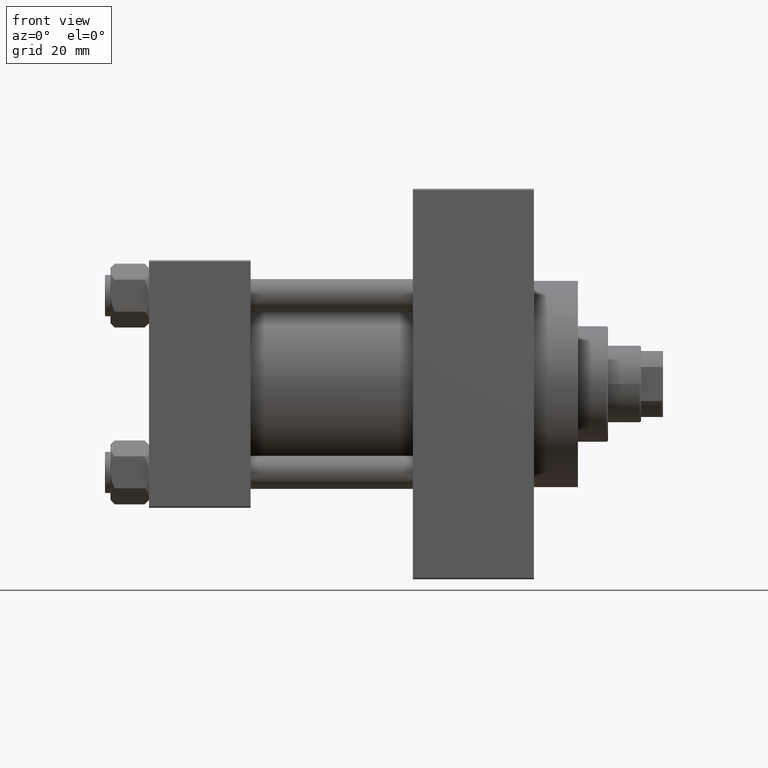
[diagram: clean part render]
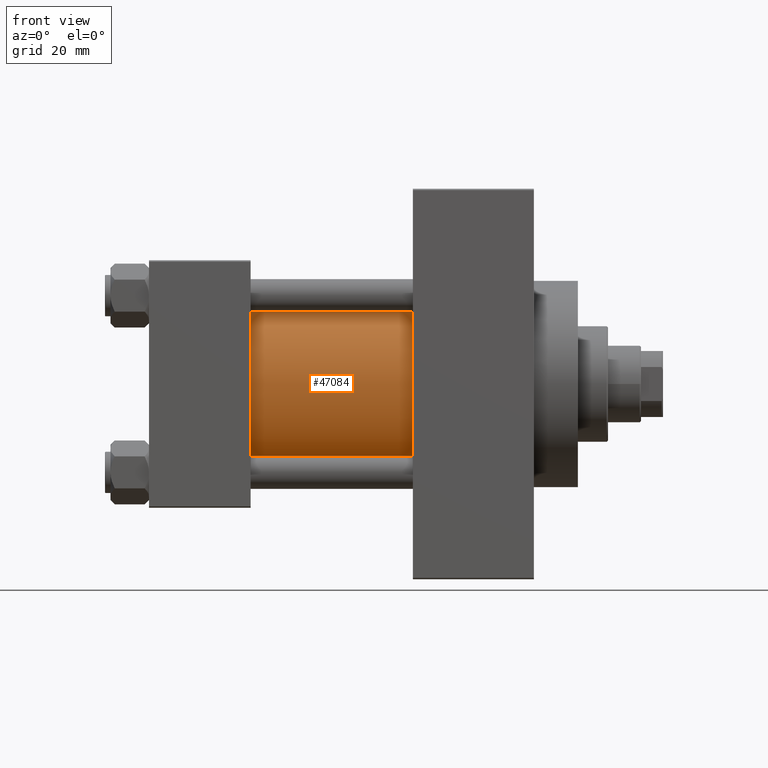
[diagram: same view with one face highlighted and labeled with its STEP entity id]
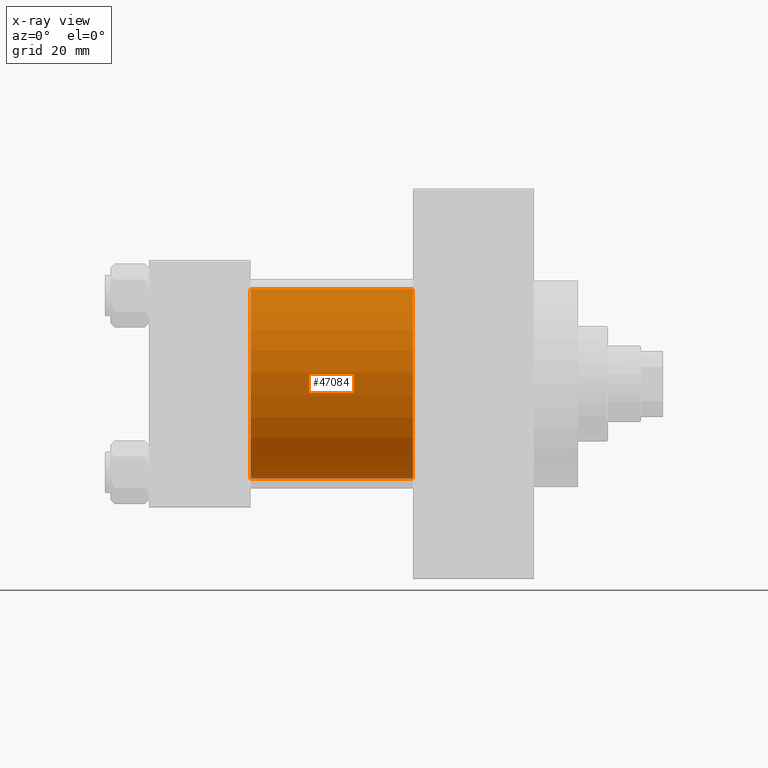
[diagram: x-ray of the same camera — body ghosted, the highlighted face saturated]
A machine part, front view. The second image highlights one B-rep face of the part: STEP entity #47084.
The next image is the same camera in x-ray: the body ghosted, the highlighted face saturated — about 3% of this face is hidden behind the body in this view.
In plain terms, the highlighted cylindrical surface (partial cylindrical patch) has radius 34.5 mm, axis along (-1, -0, -0).
Its self-contained STEP definition (entity closure, byte-faithful):
#3688 = LINE ( 'NONE', #22738, #17245 ) ;
#4126 = VERTEX_POINT ( 'NONE', #45085 ) ;
#4294 = ORIENTED_EDGE ( 'NONE', *, *, #12465, .F. ) ;
#5467 = FACE_OUTER_BOUND ( 'NONE', #12286, .T. ) ;
#7425 = CARTESIAN_POINT ( 'NONE',  ( 96.00000000000000000, -2.602085213965210642E-15, 34.50000000000000000 ) ) ;
#9060 = CARTESIAN_POINT ( 'NONE',  ( 96.00000000000000000, -2.602085213965210642E-15, 34.50000000000000000 ) ) ;
#10379 = VERTEX_POINT ( 'NONE', #37547 ) ;
#11471 = CIRCLE ( 'NONE', #39111, 34.50000000000000000 ) ;
#12286 = EDGE_LOOP ( 'NONE', ( #44621, #4294, #26840, #18832 ) ) ;
#12465 = EDGE_CURVE ( 'NONE', #42474, #17111, #14359, .T. ) ;
#12646 = CARTESIAN_POINT ( 'NONE',  ( 96.00000000000000000, -2.602085213965210642E-15, 0.000000000000000000 ) ) ;
#13139 = VECTOR ( 'NONE', #29460, 1000.000000000000000 ) ;
#14359 = CIRCLE ( 'NONE', #39626, 34.50000000000000000 ) ;
#14490 = EDGE_CURVE ( 'NONE', #4126, #10379, #11471, .T. ) ;
#15049 = DIRECTION ( 'NONE',  ( 1.000000000000000000, 0.000000000000000000, 0.000000000000000000 ) ) ;
#16356 = DIRECTION ( 'NONE',  ( 0.000000000000000000, 0.000000000000000000, 1.000000000000000000 ) ) ;
#17111 = VERTEX_POINT ( 'NONE', #44610 ) ;
#17245 = VECTOR ( 'NONE', #18794, 1000.000000000000000 ) ;
#17890 = AXIS2_PLACEMENT_3D ( 'NONE', #12646, #41450, #16356 ) ;
#18794 = DIRECTION ( 'NONE',  ( -1.000000000000000000, -0.000000000000000000, -0.000000000000000000 ) ) ;
#18832 = ORIENTED_EDGE ( 'NONE', *, *, #14490, .T. ) ;
#22738 = CARTESIAN_POINT ( 'NONE',  ( 96.00000000000000000, 1.622946243093158675E-15, -34.50000000000000000 ) ) ;
#22870 = CYLINDRICAL_SURFACE ( 'NONE', #17890, 34.50000000000000000 ) ;
#24868 = EDGE_CURVE ( 'NONE', #17111, #10379, #3688, .T. ) ;
#26840 = ORIENTED_EDGE ( 'NONE', *, *, #47306, .T. ) ;
#28078 = DIRECTION ( 'NONE',  ( 0.000000000000000000, 0.000000000000000000, 1.000000000000000000 ) ) ;
#29460 = DIRECTION ( 'NONE',  ( -1.000000000000000000, -0.000000000000000000, -0.000000000000000000 ) ) ;
#30133 = CARTESIAN_POINT ( 'NONE',  ( 96.00000000000000000, -2.602085213965210642E-15, 0.000000000000000000 ) ) ;
#35509 = CARTESIAN_POINT ( 'NONE',  ( 37.00000000000000000, -2.602085213965210642E-15, 0.000000000000000000 ) ) ;
#37547 = CARTESIAN_POINT ( 'NONE',  ( 37.00000000000000000, 1.622946243093158675E-15, -34.50000000000000000 ) ) ;
#39111 = AXIS2_PLACEMENT_3D ( 'NONE', #35509, #47655, #28078 ) ;
#39626 = AXIS2_PLACEMENT_3D ( 'NONE', #30133, #15049, #44758 ) ;
#41104 = LINE ( 'NONE', #7425, #13139 ) ;
#41450 = DIRECTION ( 'NONE',  ( -1.000000000000000000, -0.000000000000000000, -0.000000000000000000 ) ) ;
#42474 = VERTEX_POINT ( 'NONE', #9060 ) ;
#44610 = CARTESIAN_POINT ( 'NONE',  ( 96.00000000000000000, 1.622946243093158675E-15, -34.50000000000000000 ) ) ;
#44621 = ORIENTED_EDGE ( 'NONE', *, *, #24868, .F. ) ;
#44758 = DIRECTION ( 'NONE',  ( 0.000000000000000000, 0.000000000000000000, -1.000000000000000000 ) ) ;
#45085 = CARTESIAN_POINT ( 'NONE',  ( 37.00000000000000000, -2.602085213965210642E-15, 34.50000000000000000 ) ) ;
#47084 = ADVANCED_FACE ( 'NONE', ( #5467 ), #22870, .T. ) ;
#47306 = EDGE_CURVE ( 'NONE', #42474, #4126, #41104, .T. ) ;
#47655 = DIRECTION ( 'NONE',  ( 1.000000000000000000, -0.000000000000000000, 0.000000000000000000 ) ) ;